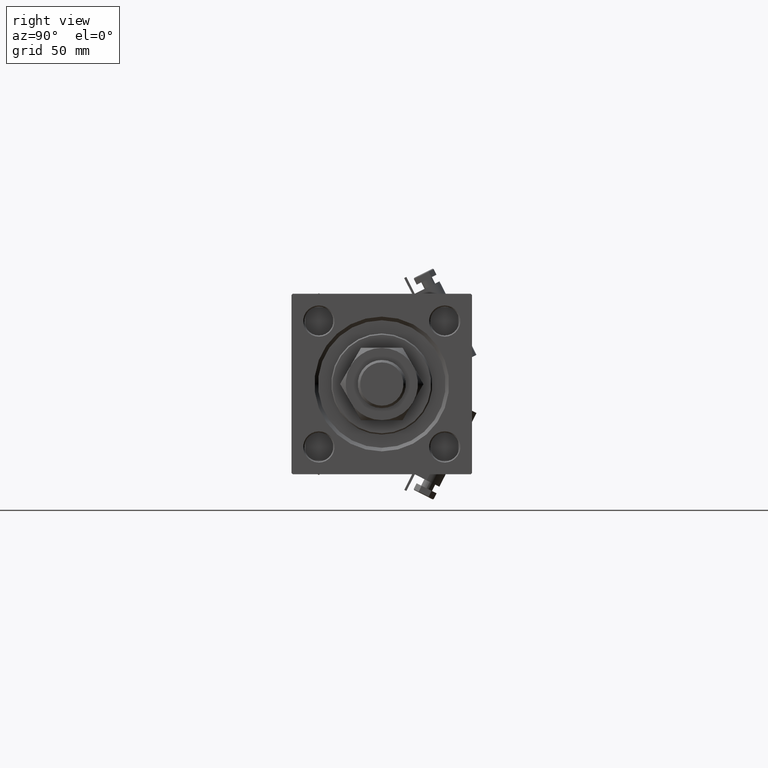
[diagram: clean part render]
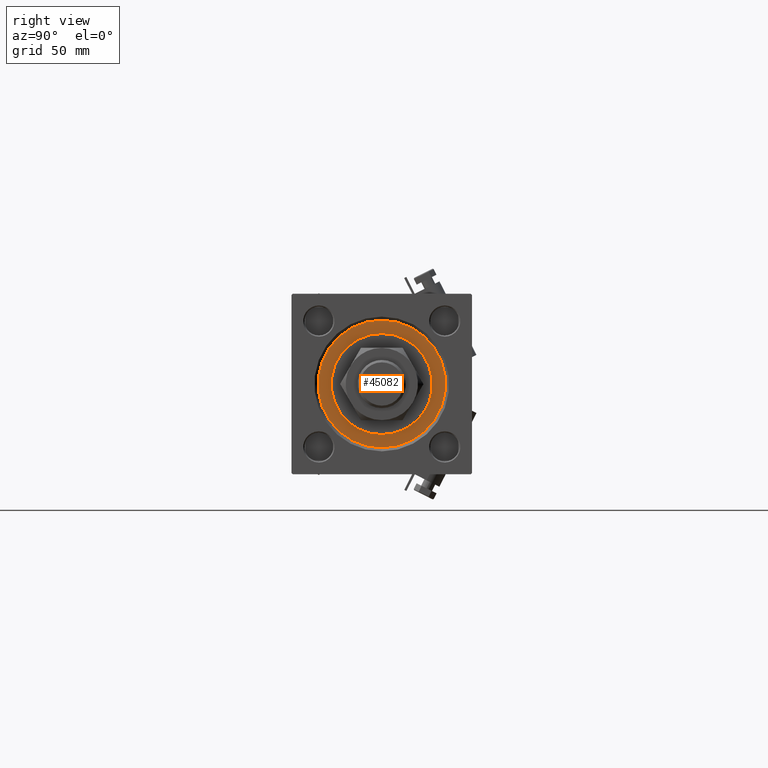
[diagram: same view with one face highlighted and labeled with its STEP entity id]
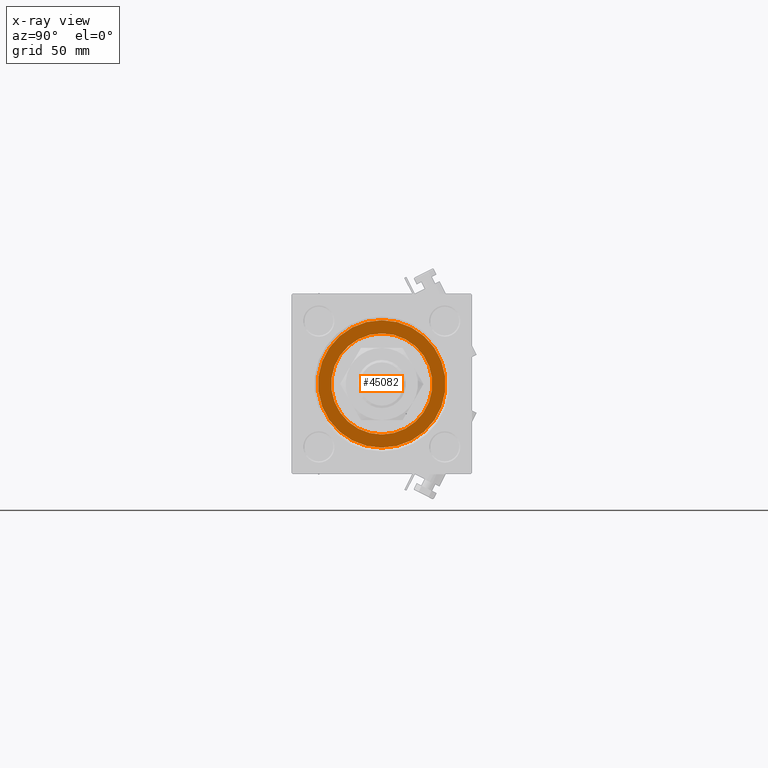
[diagram: x-ray of the same camera — body ghosted, the highlighted face saturated]
A machine part, right view. The second image highlights one B-rep face of the part: STEP entity #45082.
The next image is the same camera in x-ray: the body ghosted, the highlighted face saturated — about 0% of this face is hidden behind the body in this view.
In plain terms, the highlighted planar face has unit normal (1, 0, 0).
Its self-contained STEP definition (entity closure, byte-faithful):
#2351 = VERTEX_POINT ( 'NONE', #8468 ) ;
#2688 = ORIENTED_EDGE ( 'NONE', *, *, #35445, .F. ) ;
#6400 = EDGE_LOOP ( 'NONE', ( #2688, #50305 ) ) ;
#6922 = EDGE_LOOP ( 'NONE', ( #45892, #31080 ) ) ;
#6928 = DIRECTION ( 'NONE',  ( 0.000000000000000000, 0.000000000000000000, 1.000000000000000000 ) ) ;
#7155 = CIRCLE ( 'NONE', #37011, 21.00000000000000000 ) ;
#8468 = CARTESIAN_POINT ( 'NONE',  ( 26.50000000000000355, 3.245314017740486554E-15, 28.69999999999999929 ) ) ;
#8879 = VERTEX_POINT ( 'NONE', #22239 ) ;
#9466 = FACE_BOUND ( 'NONE', #6400, .T. ) ;
#10127 = DIRECTION ( 'NONE',  ( 0.000000000000000000, 0.000000000000000000, 1.000000000000000000 ) ) ;
#10231 = VERTEX_POINT ( 'NONE', #50934 ) ;
#14004 = FACE_OUTER_BOUND ( 'NONE', #6922, .T. ) ;
#16775 = DIRECTION ( 'NONE',  ( 1.000000000000000000, 0.000000000000000000, 0.000000000000000000 ) ) ;
#17972 = AXIS2_PLACEMENT_3D ( 'NONE', #19216, #51816, #16775 ) ;
#17993 = DIRECTION ( 'NONE',  ( 0.000000000000000000, 0.000000000000000000, 1.000000000000000000 ) ) ;
#19216 = CARTESIAN_POINT ( 'NONE',  ( 0.000000000000000000, 0.000000000000000000, 28.69999999999999929 ) ) ;
#20576 = CIRCLE ( 'NONE', #44449, 26.50000000000000355 ) ;
#22239 = CARTESIAN_POINT ( 'NONE',  ( 21.00000000000000000, 2.571758278209441661E-15, 28.69999999999999929 ) ) ;
#22714 = DIRECTION ( 'NONE',  ( 0.000000000000000000, 0.000000000000000000, 1.000000000000000000 ) ) ;
#25760 = PLANE ( 'NONE',  #29837 ) ;
#25770 = EDGE_CURVE ( 'NONE', #8879, #10231, #30687, .T. ) ;
#28246 = CIRCLE ( 'NONE', #17972, 26.50000000000000355 ) ;
#28560 = EDGE_CURVE ( 'NONE', #2351, #37862, #20576, .T. ) ;
#28690 = EDGE_CURVE ( 'NONE', #37862, #2351, #28246, .T. ) ;
#29837 = AXIS2_PLACEMENT_3D ( 'NONE', #50872, #17993, #34285 ) ;
#30687 = CIRCLE ( 'NONE', #51177, 21.00000000000000000 ) ;
#30997 = CARTESIAN_POINT ( 'NONE',  ( 0.000000000000000000, 0.000000000000000000, 28.69999999999999929 ) ) ;
#31080 = ORIENTED_EDGE ( 'NONE', *, *, #28560, .T. ) ;
#33664 = CARTESIAN_POINT ( 'NONE',  ( 0.000000000000000000, 0.000000000000000000, 28.69999999999999929 ) ) ;
#34285 = DIRECTION ( 'NONE',  ( 1.000000000000000000, 0.000000000000000000, -0.000000000000000000 ) ) ;
#35445 = EDGE_CURVE ( 'NONE', #10231, #8879, #7155, .T. ) ;
#37011 = AXIS2_PLACEMENT_3D ( 'NONE', #30997, #22714, #47314 ) ;
#37862 = VERTEX_POINT ( 'NONE', #46656 ) ;
#39530 = DIRECTION ( 'NONE',  ( 1.000000000000000000, 0.000000000000000000, 0.000000000000000000 ) ) ;
#43544 = CARTESIAN_POINT ( 'NONE',  ( 0.000000000000000000, 0.000000000000000000, 28.69999999999999929 ) ) ;
#44449 = AXIS2_PLACEMENT_3D ( 'NONE', #33664, #10127, #46225 ) ;
#45082 = ADVANCED_FACE ( 'NONE', ( #9466, #14004 ), #25760, .T. ) ;
#45892 = ORIENTED_EDGE ( 'NONE', *, *, #28690, .T. ) ;
#46225 = DIRECTION ( 'NONE',  ( 1.000000000000000000, 0.000000000000000000, 0.000000000000000000 ) ) ;
#46656 = CARTESIAN_POINT ( 'NONE',  ( -26.50000000000000355, 0.000000000000000000, 28.69999999999999929 ) ) ;
#47314 = DIRECTION ( 'NONE',  ( 1.000000000000000000, 0.000000000000000000, 0.000000000000000000 ) ) ;
#50305 = ORIENTED_EDGE ( 'NONE', *, *, #25770, .F. ) ;
#50872 = CARTESIAN_POINT ( 'NONE',  ( 0.000000000000000000, 0.000000000000000000, 28.69999999999999929 ) ) ;
#50934 = CARTESIAN_POINT ( 'NONE',  ( -21.00000000000000000, 0.000000000000000000, 28.69999999999999929 ) ) ;
#51177 = AXIS2_PLACEMENT_3D ( 'NONE', #43544, #6928, #39530 ) ;
#51816 = DIRECTION ( 'NONE',  ( 0.000000000000000000, 0.000000000000000000, 1.000000000000000000 ) ) ;